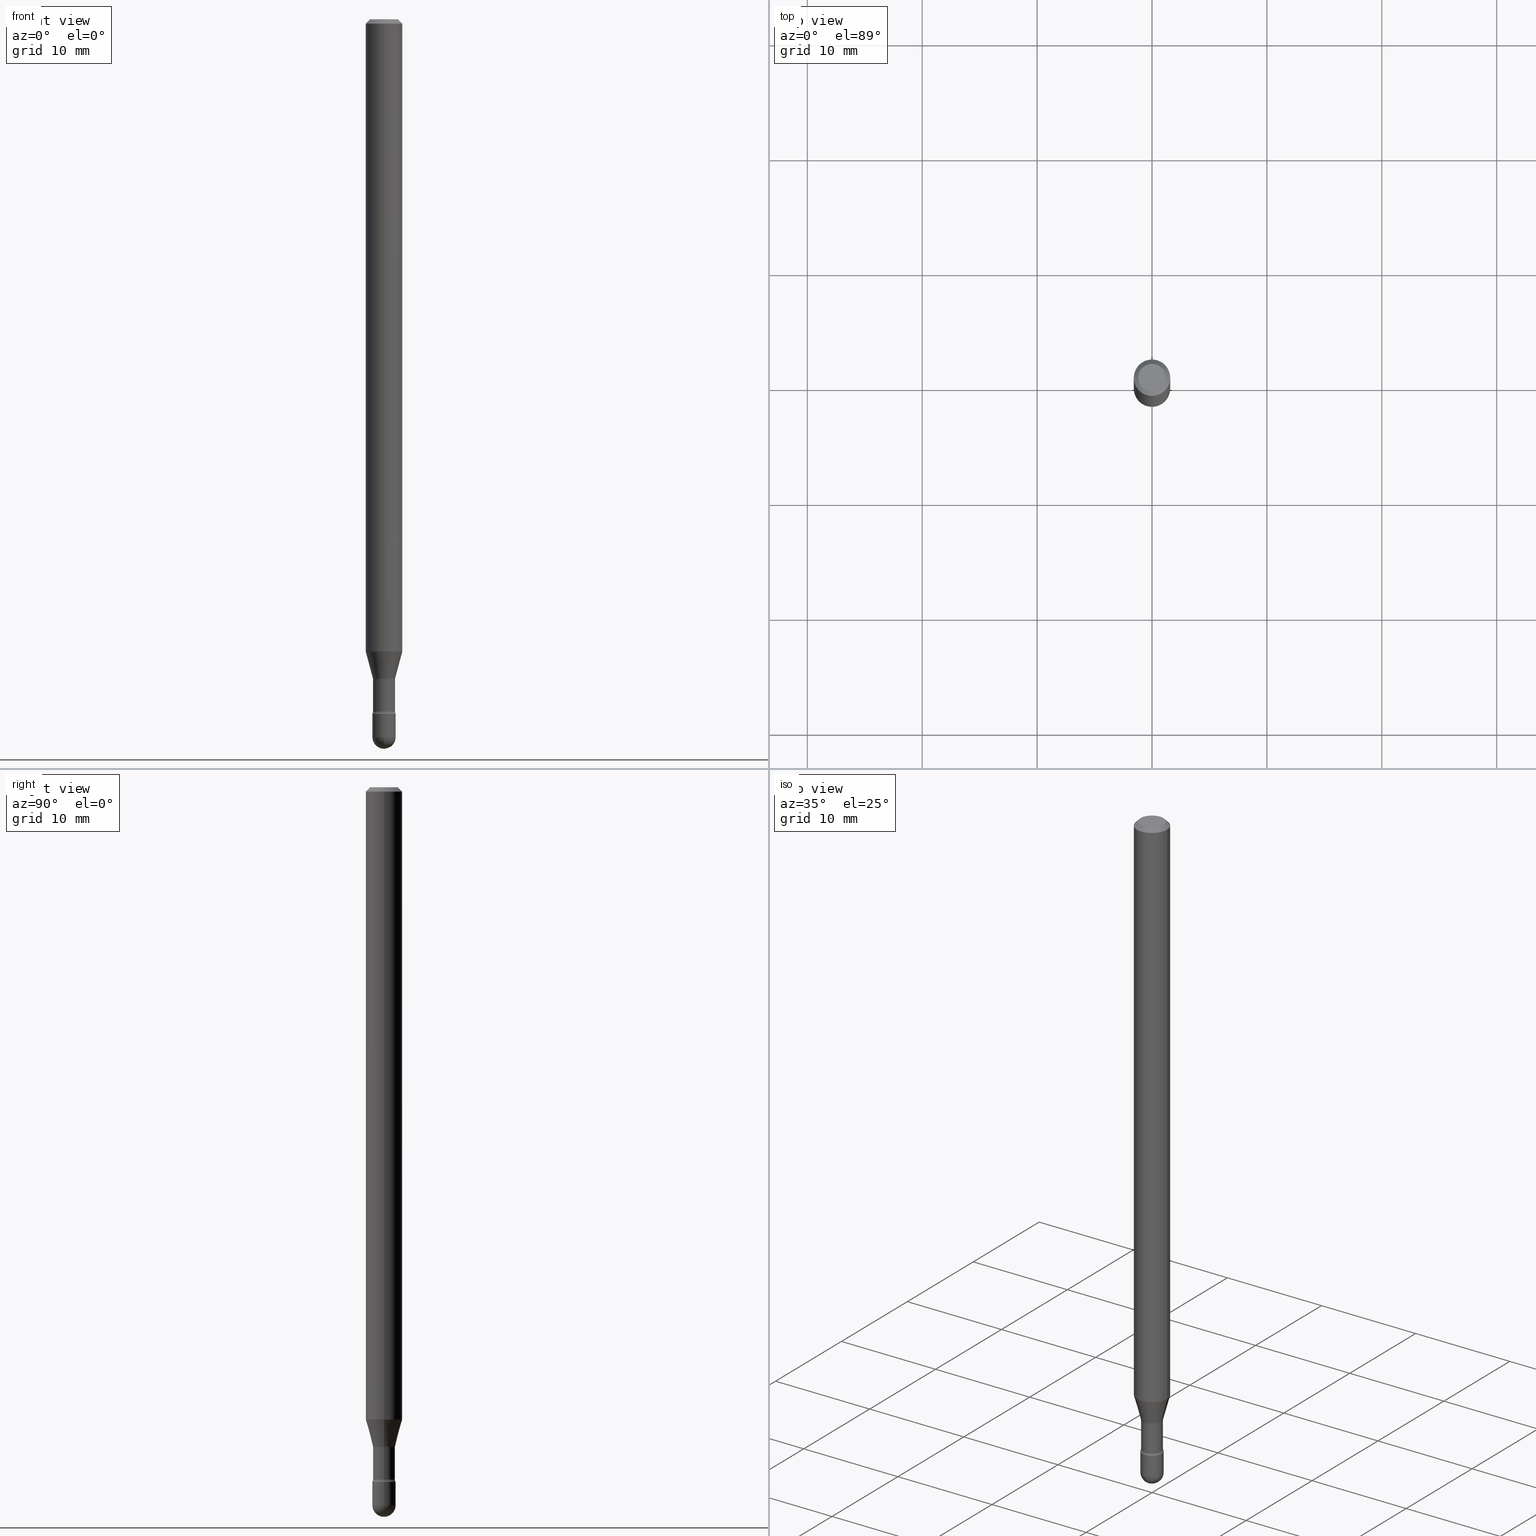
[diagram: canonical four-view strip — front | top / right | iso, engineering-drawing reading convention]
A machine part, canonical four-view strip (front | top / right | iso — engineering-drawing reading convention). The complete STEP part file that produces these views, byte-faithful:
ISO-10303-21;
HEADER;
FILE_DESCRIPTION (( 'STEP AP203' ),
    '1' );
FILE_NAME ('09536.STEP',
    '2024-04-10T00:24:25',
    ( '' ),
    ( '' ),
    'SwSTEP 2.0',
    'SolidWorks 2023',
    '' );
FILE_SCHEMA (( 'CONFIG_CONTROL_DESIGN' ));
ENDSEC;

DATA;
#1 = SHAPE_DEFINITION_REPRESENTATION ( #358, #173 ) ;
#2 = LINE ( 'NONE', #170, #9 ) ;
#3 = TOROIDAL_SURFACE ( 'NONE', #110, 0.05260000000000002174, 0.01499999999999990404 ) ;
#4 = EDGE_CURVE ( 'NONE', #364, #277, #104, .T. ) ;
#5 = LINE ( 'NONE', #445, #185 ) ;
#6 = ORIENTED_EDGE ( 'NONE', *, *, #168, .F. ) ;
#7 = APPROVAL ( #564, 'UNSPECIFIED' ) ;
#8 = CARTESIAN_POINT ( 'NONE',  ( 6.115382348041200269E-29, -8.726254053509568220E-15, -2.500000000000000000 ) ) ;
#9 = VECTOR ( 'NONE', #350, 39.37007874015748143 ) ;
#10 = EDGE_LOOP ( 'NONE', ( #157, #461 ) ) ;
#11 = ORIENTED_EDGE ( 'NONE', *, *, #501, .T. ) ;
#12 = CLOSED_SHELL ( 'NONE', ( #181, #558, #196, #136, #241, #319, #327, #269, #337, #566, #529, #221, #441, #460 ) ) ;
#13 = DIRECTION ( 'NONE',  ( -1.000000000000000000, 7.105427357601001070E-15, -4.926315508542082329E-29 ) ) ;
#14 = APPLICATION_CONTEXT ( 'configuration controlled 3d designs of mechanical parts and assemblies' ) ;
#15 = EDGE_LOOP ( 'NONE', ( #231, #284, #507, #71, #422 ) ) ;
#16 = EDGE_CURVE ( 'NONE', #122, #186, #443, .T. ) ;
#17 = DIRECTION ( 'NONE',  ( -6.982962677686266711E-15, -1.000000000000000000, 3.491481338843145583E-15 ) ) ;
#18 = CYLINDRICAL_SURFACE ( 'NONE', #339, 0.06250000000000000000 ) ;
#19 = DIRECTION ( 'NONE',  ( -7.105427357601000281E-15, -1.000000000000000000, 0.000000000000000000 ) ) ;
#20 = AXIS2_PLACEMENT_3D ( 'NONE', #286, #199, #506 ) ;
#21 = ORIENTED_EDGE ( 'NONE', *, *, #127, .F. ) ;
#22 = AXIS2_PLACEMENT_3D ( 'NONE', #155, #198, #23 ) ;
#23 = DIRECTION ( 'NONE',  ( -1.000000000000000000, 6.982962677686265922E-15, -4.876176775795935793E-29 ) ) ;
#24 = CARTESIAN_POINT ( 'NONE',  ( -1.169113584055446105E-44, 1.669184350826100908E-30, 4.780733988912460139E-16 ) ) ;
#25 = ORIENTED_EDGE ( 'NONE', *, *, #101, .T. ) ;
#26 = EDGE_CURVE ( 'NONE', #465, #504, #544, .T. ) ;
#27 = DIRECTION ( 'NONE',  ( -2.445468806185136597E-29, 3.491481338843145583E-15, 1.000000000000000000 ) ) ;
#28 = FACE_OUTER_BOUND ( 'NONE', #500, .T. ) ;
#29 = ORIENTED_EDGE ( 'NONE', *, *, #168, .T. ) ;
#30 = DIRECTION ( 'NONE',  ( 0.000000000000000000, 0.000000000000000000, 1.000000000000000000 ) ) ;
#31 = ORIENTED_EDGE ( 'NONE', *, *, #484, .F. ) ;
#32 = CIRCLE ( 'NONE', #70, 0.01500000000000001853 ) ;
#33 = SECURITY_CLASSIFICATION ( '', '', #212 ) ;
#34 = PERSON_AND_ORGANIZATION ( #513, #273 ) ;
#35 = CARTESIAN_POINT ( 'NONE',  ( 5.820215758720626311E-29, -8.309725586446688309E-15, -2.380000000000000338 ) ) ;
#36 = PERSON_AND_ORGANIZATION_ROLE ( 'creator' ) ;
#37 = DIRECTION ( 'NONE',  ( -2.438088387897960049E-29, 3.491481338843145188E-15, 1.000000000000000000 ) ) ;
#38 = EDGE_CURVE ( 'NONE', #232, #364, #415, .T. ) ;
#39 = DATE_AND_TIME ( #427, #349 ) ;
#40 = DIRECTION ( 'NONE',  ( 6.982962677686265922E-15, 1.000000000000000000, -6.829619984160649566E-15 ) ) ;
#41 = EDGE_CURVE ( 'NONE', #122, #361, #499, .T. ) ;
#42 = TOROIDAL_SURFACE ( 'NONE', #532, 0.05260000000000000092, 0.01500000000000002373 ) ;
#43 = FACE_OUTER_BOUND ( 'NONE', #79, .T. ) ;
#44 = VECTOR ( 'NONE', #184, 39.37007874015748143 ) ;
#45 = CYLINDRICAL_SURFACE ( 'NONE', #134, 0.04000000000000000083 ) ;
#46 = DATE_TIME_ROLE ( 'creation_date' ) ;
#47 = FACE_OUTER_BOUND ( 'NONE', #406, .T. ) ;
#48 = CONICAL_SURFACE ( 'NONE', #330, 0.06250000000000000000, 0.7853981633974483900 ) ;
#49 = EDGE_CURVE ( 'NONE', #277, #364, #488, .T. ) ;
#50 = ORIENTED_EDGE ( 'NONE', *, *, #370, .T. ) ;
#51 = DIRECTION ( 'NONE',  ( -2.445468806185136597E-29, 3.491481338843145583E-15, 1.000000000000000000 ) ) ;
#52 = DIRECTION ( 'NONE',  ( -2.445468806185136597E-29, 3.491481338843145583E-15, 1.000000000000000000 ) ) ;
#53 = VERTEX_POINT ( 'NONE', #547 ) ;
#54 = ORIENTED_EDGE ( 'NONE', *, *, #139, .F. ) ;
#55 = EDGE_LOOP ( 'NONE', ( #359, #360, #531, #54 ) ) ;
#56 = DIRECTION ( 'NONE',  ( 1.000000000000000000, -6.982962677686259611E-15, 0.000000000000000000 ) ) ;
#57 = AXIS2_PLACEMENT_3D ( 'NONE', #431, #37, #263 ) ;
#58 = ORIENTED_EDGE ( 'NONE', *, *, #424, .T. ) ;
#59 = AXIS2_PLACEMENT_3D ( 'NONE', #77, #202, #116 ) ;
#60 = AXIS2_PLACEMENT_3D ( 'NONE', #230, #276, #400 ) ;
#61 = SPHERICAL_SURFACE ( 'NONE', #561, 0.04000000000000004940 ) ;
#62 = VERTEX_POINT ( 'NONE', #275 ) ;
#63 =( NAMED_UNIT ( * ) PLANE_ANGLE_UNIT ( ) SI_UNIT ( $, .RADIAN. ) );
#64 = APPROVAL ( #322, 'UNSPECIFIED' ) ;
#65 = CARTESIAN_POINT ( 'NONE',  ( 2.793185071075109275E-16, 0.03999999999999143130, -2.460000000000000409 ) ) ;
#66 = ORIENTED_EDGE ( 'NONE', *, *, #91, .F. ) ;
#67 = ORIENTED_EDGE ( 'NONE', *, *, #26, .T. ) ;
#68 = CARTESIAN_POINT ( 'NONE',  ( -0.06250000000000000000, 4.440892098500642925E-16, 4.780733988912429571E-16 ) ) ;
#69 = EDGE_CURVE ( 'NONE', #326, #146, #355, .T. ) ;
#70 = AXIS2_PLACEMENT_3D ( 'NONE', #478, #393, #175 ) ;
#71 = ORIENTED_EDGE ( 'NONE', *, *, #370, .F. ) ;
#72 = AXIS2_PLACEMENT_3D ( 'NONE', #371, #27, #161 ) ;
#73 =( CONVERSION_BASED_UNIT ( 'INCH', #329 ) LENGTH_UNIT ( ) NAMED_UNIT ( #268 ) );
#74 = CARTESIAN_POINT ( 'NONE',  ( 3.668203209277725232E-31, -5.237222008264747365E-17, -0.01500000000000008271 ) ) ;
#75 = CC_DESIGN_PERSON_AND_ORGANIZATION_ASSIGNMENT ( #174, #438, ( #351 ) ) ;
#76 = ORIENTED_EDGE ( 'NONE', *, *, #16, .F. ) ;
#77 = CARTESIAN_POINT ( 'NONE',  ( 0.05260000000000002174, -8.648612969009036274E-15, -2.371861204020250469 ) ) ;
#78 = DIRECTION ( 'NONE',  ( -2.445468806185136877E-29, 3.491481338843145188E-15, 1.000000000000000000 ) ) ;
#79 = EDGE_LOOP ( 'NONE', ( #464, #398, #160, #189 ) ) ;
#80 = CARTESIAN_POINT ( 'NONE',  ( -1.169113584055446105E-44, 1.669184350826100908E-30, 4.780733988912460139E-16 ) ) ;
#81 = DIRECTION ( 'NONE',  ( 1.000000000000000000, -6.982962677686256455E-15, 4.883557194083108977E-29 ) ) ;
#82 = CIRCLE ( 'NONE', #176, 0.03811111260566397985 ) ;
#83 = PERSON_AND_ORGANIZATION ( #513, #273 ) ;
#84 = EDGE_CURVE ( 'NONE', #115, #106, #283, .T. ) ;
#85 = CARTESIAN_POINT ( 'NONE',  ( -0.06250000000000000000, -3.365242510493513525E-15, -0.01500000000000008271 ) ) ;
#86 = PRODUCT ( '09536', '09536', '', ( #413 ) ) ;
#87 = APPROVAL_ROLE ( '' ) ;
#88 = CARTESIAN_POINT ( 'NONE',  ( -0.03999999999999993144, -8.025508492142647982E-15, -2.380000000000000338 ) ) ;
#89 = CARTESIAN_POINT ( 'NONE',  ( -0.04000000000000000083, -8.165167745696373001E-15, -2.380000000000000338 ) ) ;
#90 = CARTESIAN_POINT ( 'NONE',  ( 5.531588783120004822E-29, -7.897642759363587821E-15, -2.261974787463811420 ) ) ;
#91 = EDGE_CURVE ( 'NONE', #53, #125, #5, .T. ) ;
#92 = CIRCLE ( 'NONE', #100, 0.04000000000000004940 ) ;
#93 = APPROVAL_STATUS ( 'not_yet_approved' ) ;
#94 = LOCAL_TIME ( 20, 24, 25.00000000000000000, #378 ) ;
#95 = DIRECTION ( 'NONE',  ( 2.445468806185136597E-29, -3.491481338843145583E-15, -1.000000000000000000 ) ) ;
#96 = PERSON_AND_ORGANIZATION_ROLE ( 'design_supplier' ) ;
#97 = DIRECTION ( 'NONE',  ( -1.000000000000000000, 6.982962677686265922E-15, -4.883557194083112340E-29 ) ) ;
#98 = CARTESIAN_POINT ( 'NONE',  ( 6.015853263215436432E-29, -8.589044093554138346E-15, -2.459999999999999964 ) ) ;
#99 = FACE_OUTER_BOUND ( 'NONE', #320, .T. ) ;
#100 = AXIS2_PLACEMENT_3D ( 'NONE', #336, #503, #416 ) ;
#101 = EDGE_CURVE ( 'NONE', #295, #106, #480, .T. ) ;
#102 = APPROVAL_PERSON_ORGANIZATION ( #169, #226, #87 ) ;
#103 = DIRECTION ( 'NONE',  ( 1.000000000000000000, -6.982962677686262766E-15, 0.000000000000000000 ) ) ;
#104 = CIRCLE ( 'NONE', #471, 0.04000000000000000083 ) ;
#105 = ORIENTED_EDGE ( 'NONE', *, *, #519, .T. ) ;
#106 = VERTEX_POINT ( 'NONE', #353 ) ;
#107 = CARTESIAN_POINT ( 'NONE',  ( -1.169113584055446105E-44, 1.669184350826100908E-30, 4.780733988912460139E-16 ) ) ;
#108 = DIRECTION ( 'NONE',  ( 1.000000000000000000, -6.982962677686259611E-15, 0.000000000000000000 ) ) ;
#109 = DIRECTION ( 'NONE',  ( -1.000000000000000000, 6.982962677686265922E-15, -4.883557194083112340E-29 ) ) ;
#110 = AXIS2_PLACEMENT_3D ( 'NONE', #193, #518, #549 ) ;
#111 = VERTEX_POINT ( 'NONE', #301 ) ;
#112 = CC_DESIGN_APPROVAL ( #226, ( #33 ) ) ;
#113 = DIRECTION ( 'NONE',  ( 1.000000000000000000, -6.982962677686265922E-15, 4.876176775795935793E-29 ) ) ;
#114 = DIRECTION ( 'NONE',  ( 1.000000000000000000, -6.982962677686259611E-15, 0.000000000000000000 ) ) ;
#115 = VERTEX_POINT ( 'NONE', #372 ) ;
#116 = DIRECTION ( 'NONE',  ( 1.000000000000000000, -6.982962677686246200E-15, 0.000000000000000000 ) ) ;
#117 = EDGE_CURVE ( 'NONE', #295, #242, #381, .T. ) ;
#118 = DIRECTION ( 'NONE',  ( 2.445468806185136597E-29, -3.491481338843145583E-15, -1.000000000000000000 ) ) ;
#119 = ORIENTED_EDGE ( 'NONE', *, *, #335, .F. ) ;
#120 = DIRECTION ( 'NONE',  ( -2.445468806185136597E-29, 3.491481338843145583E-15, 1.000000000000000000 ) ) ;
#121 = AXIS2_PLACEMENT_3D ( 'NONE', #304, #439, #300 ) ;
#122 = VERTEX_POINT ( 'NONE', #382 ) ;
#123 = FACE_OUTER_BOUND ( 'NONE', #383, .T. ) ;
#124 = CARTESIAN_POINT ( 'NONE',  ( -0.04749999999999999362, 3.578768372314208041E-16, -8.274703207154778150E-17 ) ) ;
#125 = VERTEX_POINT ( 'NONE', #89 ) ;
#126 = CARTESIAN_POINT ( 'NONE',  ( 5.299506817536516568E-29, -7.566291220604504020E-15, -2.167071934891535712 ) ) ;
#127 = EDGE_CURVE ( 'NONE', #146, #292, #459, .T. ) ;
#128 = DIRECTION ( 'NONE',  ( -2.445468806185136597E-29, 3.491481338843145583E-15, 1.000000000000000000 ) ) ;
#129 = VECTOR ( 'NONE', #225, 39.37007874015748143 ) ;
#130 = DATE_AND_TIME ( #517, #524 ) ;
#131 = AXIS2_PLACEMENT_3D ( 'NONE', #410, #13, #19 ) ;
#132 = FACE_OUTER_BOUND ( 'NONE', #55, .T. ) ;
#133 = DIRECTION ( 'NONE',  ( 1.000000000000000000, -6.982962677686263555E-15, 0.000000000000000000 ) ) ;
#134 = AXIS2_PLACEMENT_3D ( 'NONE', #562, #172, #428 ) ;
#135 = AXIS2_PLACEMENT_3D ( 'NONE', #540, #188, #194 ) ;
#136 = ADVANCED_FACE ( 'NONE', ( #255 ), #48, .T. ) ;
#137 = CARTESIAN_POINT ( 'NONE',  ( 0.04000000000000000083, -2.793185071074506290E-16, 1.950470710318374387E-30 ) ) ;
#138 = ORIENTED_EDGE ( 'NONE', *, *, #403, .F. ) ;
#139 = EDGE_CURVE ( 'NONE', #295, #326, #555, .T. ) ;
#140 = DIRECTION ( 'NONE',  ( 1.000000000000000000, -6.982962677686267499E-15, 4.839830652673561674E-29 ) ) ;
#141 = ORIENTED_EDGE ( 'NONE', *, *, #403, .T. ) ;
#142 = CIRCLE ( 'NONE', #216, 0.06250000000000000000 ) ;
#143 = ORIENTED_EDGE ( 'NONE', *, *, #84, .F. ) ;
#144 = EDGE_CURVE ( 'NONE', #125, #111, #394, .T. ) ;
#145 = ORIENTED_EDGE ( 'NONE', *, *, #178, .T. ) ;
#146 = VERTEX_POINT ( 'NONE', #367 ) ;
#147 = ORIENTED_EDGE ( 'NONE', *, *, #473, .T. ) ;
#148 = DIRECTION ( 'NONE',  ( -2.445468806185136597E-29, 3.491481338843145583E-15, 1.000000000000000000 ) ) ;
#149 = CIRCLE ( 'NONE', #321, 0.04749999999999999362 ) ;
#150 = ORIENTED_EDGE ( 'NONE', *, *, #214, .T. ) ;
#151 = ORIENTED_EDGE ( 'NONE', *, *, #4, .T. ) ;
#152 = PLANE ( 'NONE',  #22 ) ;
#153 = DIRECTION ( 'NONE',  ( -2.445468806185136597E-29, 3.491481338843145583E-15, 1.000000000000000000 ) ) ;
#154 = ORIENTED_EDGE ( 'NONE', *, *, #247, .T. ) ;
#155 = CARTESIAN_POINT ( 'NONE',  ( 3.316907271900976096E-16, 0.04749999999999999362, 3.181781981480094004E-17 ) ) ;
#156 = DIRECTION ( 'NONE',  ( -2.445468806185136597E-29, 3.491481338843145583E-15, 1.000000000000000000 ) ) ;
#157 = ORIENTED_EDGE ( 'NONE', *, *, #466, .T. ) ;
#158 = CARTESIAN_POINT ( 'NONE',  ( -0.03760000000000006393, 2.671640686457998004E-16, 4.780733988912442390E-16 ) ) ;
#159 = AXIS2_PLACEMENT_3D ( 'NONE', #559, #218, #565 ) ;
#160 = ORIENTED_EDGE ( 'NONE', *, *, #139, .T. ) ;
#161 = DIRECTION ( 'NONE',  ( 1.000000000000000000, -6.982962677686260400E-15, 0.000000000000000000 ) ) ;
#162 = CARTESIAN_POINT ( 'NONE',  ( 5.531588783120004822E-29, -7.897642759363587821E-15, -2.261974787463811420 ) ) ;
#163 = DIRECTION ( 'NONE',  ( 1.000000000000000000, -6.982962677686266711E-15, 4.852736867747366207E-29 ) ) ;
#164 = PERSON_AND_ORGANIZATION_ROLE ( 'classification_officer' ) ;
#165 = CARTESIAN_POINT ( 'NONE',  ( 3.668203209277725232E-31, -5.237222008264747365E-17, -0.01500000000000008271 ) ) ;
#166 = TOROIDAL_SURFACE ( 'NONE', #234, 0.05260000000000002174, 0.01499999999999990404 ) ;
#167 = CC_DESIGN_SECURITY_CLASSIFICATION ( #33, ( #414 ) ) ;
#168 = EDGE_CURVE ( 'NONE', #186, #122, #149, .T. ) ;
#169 = PERSON_AND_ORGANIZATION ( #513, #273 ) ;
#170 = CARTESIAN_POINT ( 'NONE',  ( -0.03811111260566397985, -7.613292089234999694E-15, -2.258092501787273498 ) ) ;
#171 = COORDINATED_UNIVERSAL_TIME_OFFSET ( 5, 0, .BEHIND. ) ;
#172 = DIRECTION ( 'NONE',  ( -2.445468806185136597E-29, 3.491481338843145583E-15, 1.000000000000000000 ) ) ;
#173 = ADVANCED_BREP_SHAPE_REPRESENTATION ( '09536', ( #477, #469, #307 ), #208 ) ;
#174 = PERSON_AND_ORGANIZATION ( #513, #273 ) ;
#175 = DIRECTION ( 'NONE',  ( -1.000000000000000000, 7.105427357600982137E-15, 0.000000000000000000 ) ) ;
#176 = AXIS2_PLACEMENT_3D ( 'NONE', #259, #525, #215 ) ;
#177 = DIRECTION ( 'NONE',  ( -2.445468806185136877E-29, 3.491481338843145188E-15, 1.000000000000000000 ) ) ;
#178 = EDGE_CURVE ( 'NONE', #292, #361, #142, .T. ) ;
#179 = DIRECTION ( 'NONE',  ( -2.445468806185136877E-29, 3.491481338843145188E-15, 1.000000000000000000 ) ) ;
#180 = AXIS2_PLACEMENT_3D ( 'NONE', #107, #494, #140 ) ;
#181 = ADVANCED_FACE ( 'NONE', ( #244 ), #42, .F. ) ;
#182 = DIRECTION ( 'NONE',  ( -2.445468806185136597E-29, 3.491481338843145583E-15, 1.000000000000000000 ) ) ;
#183 = AXIS2_PLACEMENT_3D ( 'NONE', #90, #521, #347 ) ;
#184 = DIRECTION ( 'NONE',  ( 0.7071067811865475727, -7.319954787623256045E-15, -0.7071067811865474617 ) ) ;
#185 = VECTOR ( 'NONE', #179, 39.37007874015748143 ) ;
#186 = VERTEX_POINT ( 'NONE', #124 ) ;
#187 = CC_DESIGN_PERSON_AND_ORGANIZATION_ASSIGNMENT ( #341, #96, ( #414 ) ) ;
#188 = DIRECTION ( 'NONE',  ( 7.105427357601001859E-15, 1.000000000000000000, -3.491481338843145583E-15 ) ) ;
#189 = ORIENTED_EDGE ( 'NONE', *, *, #214, .F. ) ;
#190 = DIRECTION ( 'NONE',  ( -2.445468806185136597E-29, 3.491481338843145583E-15, 1.000000000000000000 ) ) ;
#191 = ORIENTED_EDGE ( 'NONE', *, *, #260, .F. ) ;
#192 = AXIS2_PLACEMENT_3D ( 'NONE', #444, #317, #530 ) ;
#193 = CARTESIAN_POINT ( 'NONE',  ( 5.800312587032242765E-29, -8.281309132162739301E-15, -2.371861204020250469 ) ) ;
#194 = DIRECTION ( 'NONE',  ( -1.000000000000000000, 7.105427357600969515E-15, 0.000000000000000000 ) ) ;
#195 = AXIS2_PLACEMENT_3D ( 'NONE', #404, #190, #362 ) ;
#196 = ADVANCED_FACE ( 'NONE', ( #418 ), #166, .F. ) ;
#197 = ORIENTED_EDGE ( 'NONE', *, *, #271, .F. ) ;
#198 = DIRECTION ( 'NONE',  ( 2.438088387897960049E-29, -3.491481338843145188E-15, -1.000000000000000000 ) ) ;
#199 = DIRECTION ( 'NONE',  ( -2.445468806185136597E-29, 3.491481338843145583E-15, 1.000000000000000000 ) ) ;
#200 = DIRECTION ( 'NONE',  ( -2.445468806185136597E-29, 3.491481338843145583E-15, 1.000000000000000000 ) ) ;
#201 = ORIENTED_EDGE ( 'NONE', *, *, #247, .F. ) ;
#202 = DIRECTION ( 'NONE',  ( -6.982962677686266711E-15, -1.000000000000000000, 3.491481338843145583E-15 ) ) ;
#203 = DIRECTION ( 'NONE',  ( 1.000000000000000000, -6.982962677686266711E-15, 4.852736867747366207E-29 ) ) ;
#204 = VERTEX_POINT ( 'NONE', #65 ) ;
#205 = PERSON_AND_ORGANIZATION_ROLE ( 'design_owner' ) ;
#206 = CARTESIAN_POINT ( 'NONE',  ( 3.668203209277725232E-31, -5.237222008264747365E-17, -0.01500000000000008271 ) ) ;
#207 = AXIS2_PLACEMENT_3D ( 'NONE', #557, #128, #163 ) ;
#208 =( GEOMETRIC_REPRESENTATION_CONTEXT ( 3 ) GLOBAL_UNCERTAINTY_ASSIGNED_CONTEXT ( ( #345 ) ) GLOBAL_UNIT_ASSIGNED_CONTEXT ( ( #73, #63, #510 ) ) REPRESENTATION_CONTEXT ( 'NONE', 'WORKASPACE' ) );
#209 = ORIENTED_EDGE ( 'NONE', *, *, #38, .F. ) ;
#210 = VECTOR ( 'NONE', #78, 39.37007874015748143 ) ;
#211 = CARTESIAN_POINT ( 'NONE',  ( -0.03760000000000011944, -8.019826777829792953E-15, -2.371861204020250469 ) ) ;
#212 = SECURITY_CLASSIFICATION_LEVEL ( 'unclassified' ) ;
#213 = DIRECTION ( 'NONE',  ( -2.445468806185136597E-29, 3.491481338843145583E-15, 1.000000000000000000 ) ) ;
#214 = EDGE_CURVE ( 'NONE', #146, #326, #305, .T. ) ;
#215 = DIRECTION ( 'NONE',  ( 1.000000000000000000, -6.982962677686261977E-15, 0.000000000000000000 ) ) ;
#216 = AXIS2_PLACEMENT_3D ( 'NONE', #206, #373, #552 ) ;
#217 = APPROVAL_ROLE ( '' ) ;
#218 = DIRECTION ( 'NONE',  ( -2.445468806185136597E-29, 3.491481338843145583E-15, 1.000000000000000000 ) ) ;
#219 = DIRECTION ( 'NONE',  ( -2.445468806185136597E-29, 3.491481338843145583E-15, 1.000000000000000000 ) ) ;
#220 = CARTESIAN_POINT ( 'NONE',  ( 0.03811111260566397985, -8.150216308302346885E-15, -2.258092501787273498 ) ) ;
#221 = ADVANCED_FACE ( 'NONE', ( #468 ), #3, .F. ) ;
#222 = DIRECTION ( 'NONE',  ( 1.000000000000000000, -6.982962677686261977E-15, 0.000000000000000000 ) ) ;
#223 = CIRCLE ( 'NONE', #280, 0.03760000000000011944 ) ;
#224 = APPROVAL_DATE_TIME ( #39, #226 ) ;
#225 = DIRECTION ( 'NONE',  ( -2.445468806185136877E-29, 3.491481338843145188E-15, 1.000000000000000000 ) ) ;
#226 = APPROVAL ( #93, 'UNSPECIFIED' ) ;
#227 = ORIENTED_EDGE ( 'NONE', *, *, #473, .F. ) ;
#228 = DIRECTION ( 'NONE',  ( -0.7071067811865475727, 2.468850131082257455E-15, -0.7071067811865474617 ) ) ;
#229 = DESIGN_CONTEXT ( 'detailed design', #14, 'design' ) ;
#230 = CARTESIAN_POINT ( 'NONE',  ( 2.023552857353652888E-45, -2.889097183224559242E-31, -8.274703207154537794E-17 ) ) ;
#231 = ORIENTED_EDGE ( 'NONE', *, *, #542, .T. ) ;
#232 = VERTEX_POINT ( 'NONE', #211 ) ;
#233 = ORIENTED_EDGE ( 'NONE', *, *, #484, .T. ) ;
#234 = AXIS2_PLACEMENT_3D ( 'NONE', #334, #425, #81 ) ;
#235 = FACE_OUTER_BOUND ( 'NONE', #323, .T. ) ;
#236 = CARTESIAN_POINT ( 'NONE',  ( 5.820215758720626311E-29, -8.309725586446688309E-15, -2.380000000000000338 ) ) ;
#237 = DIRECTION ( 'NONE',  ( 6.982962677686265922E-15, 1.000000000000000000, -6.829619984160649566E-15 ) ) ;
#238 = DIRECTION ( 'NONE',  ( -2.445468806185136597E-29, 3.491481338843145583E-15, 1.000000000000000000 ) ) ;
#239 = FACE_OUTER_BOUND ( 'NONE', #543, .T. ) ;
#240 = DIRECTION ( 'NONE',  ( -2.445468806185136597E-29, 3.491481338843145583E-15, 1.000000000000000000 ) ) ;
#241 = ADVANCED_FACE ( 'NONE', ( #28 ), #385, .T. ) ;
#242 = VERTEX_POINT ( 'NONE', #297 ) ;
#243 = ORIENTED_EDGE ( 'NONE', *, *, #542, .F. ) ;
#244 = FACE_OUTER_BOUND ( 'NONE', #458, .T. ) ;
#245 = CC_DESIGN_DATE_AND_TIME_ASSIGNMENT ( #130, #46, ( #351 ) ) ;
#246 = AXIS2_PLACEMENT_3D ( 'NONE', #492, #238, #108 ) ;
#247 = EDGE_CURVE ( 'NONE', #53, #504, #288, .T. ) ;
#248 = EDGE_LOOP ( 'NONE', ( #76, #324, #11, #31 ) ) ;
#249 = APPLICATION_PROTOCOL_DEFINITION ( 'international standard', 'config_control_design', 1994, #14 ) ;
#250 = DIRECTION ( 'NONE',  ( 1.000000000000000000, -6.982962677686267499E-15, 4.884662768193073002E-29 ) ) ;
#251 = ORIENTED_EDGE ( 'NONE', *, *, #489, .T. ) ;
#252 = APPROVAL_ROLE ( '' ) ;
#253 = EDGE_LOOP ( 'NONE', ( #316, #446, #25, #251 ) ) ;
#254 = PLANE ( 'NONE',  #340 ) ;
#255 = FACE_OUTER_BOUND ( 'NONE', #248, .T. ) ;
#256 = CIRCLE ( 'NONE', #298, 0.03999999999999999389 ) ;
#257 = CLOSED_SHELL ( 'NONE', ( #380, #497, #274, #386, #390 ) ) ;
#258 = APPROVAL_DATE_TIME ( #343, #7 ) ;
#259 = CARTESIAN_POINT ( 'NONE',  ( 5.522094774601332079E-29, -7.884087831371896446E-15, -2.258092501787273498 ) ) ;
#260 = EDGE_CURVE ( 'NONE', #465, #204, #92, .T. ) ;
#261 = COORDINATED_UNIVERSAL_TIME_OFFSET ( 5, 0, .BEHIND. ) ;
#262 = LINE ( 'NONE', #137, #433 ) ;
#263 = DIRECTION ( 'NONE',  ( 1.000000000000000000, -6.982962677686265922E-15, 4.876176775795935793E-29 ) ) ;
#264 = CIRCLE ( 'NONE', #401, 0.04000000000000000083 ) ;
#265 = AXIS2_PLACEMENT_3D ( 'NONE', #454, #449, #56 ) ;
#266 = APPROVAL_PERSON_ORGANIZATION ( #83, #7, #217 ) ;
#267 = CARTESIAN_POINT ( 'NONE',  ( 6.015853263215436432E-29, -8.589044093554138346E-15, -2.459999999999999964 ) ) ;
#268 = DIMENSIONAL_EXPONENTS ( 1.000000000000000000, 0.000000000000000000, 0.000000000000000000, 0.000000000000000000, 0.000000000000000000, 0.000000000000000000, 0.000000000000000000 ) ;
#269 = ADVANCED_FACE ( 'NONE', ( #512 ), #18, .T. ) ;
#270 = CARTESIAN_POINT ( 'NONE',  ( 0.000000000000000000, 0.000000000000000000, 0.000000000000000000 ) ) ;
#271 = EDGE_CURVE ( 'NONE', #232, #528, #463, .T. ) ;
#272 = CONICAL_SURFACE ( 'NONE', #508, 0.06250000000000000000, 0.7853981633974483900 ) ;
#273 = ORGANIZATION ( 'UNSPECIFIED', 'UNSPECIFIED', '' ) ;
#274 = ADVANCED_FACE ( 'NONE', ( #437 ), #475, .T. ) ;
#275 = CARTESIAN_POINT ( 'NONE',  ( 0.03999999999999999389, -8.728703347107863365E-15, -2.459999999999999964 ) ) ;
#276 = DIRECTION ( 'NONE',  ( -2.445468806185136597E-29, 3.491481338843145583E-15, 1.000000000000000000 ) ) ;
#277 = VERTEX_POINT ( 'NONE', #388 ) ;
#278 = CARTESIAN_POINT ( 'NONE',  ( -0.06250000000000000000, 3.840629472727441958E-16, -0.01500000000000008271 ) ) ;
#279 = CARTESIAN_POINT ( 'NONE',  ( 5.299506817536516568E-29, -7.566291220604504020E-15, -2.167071934891535712 ) ) ;
#280 = AXIS2_PLACEMENT_3D ( 'NONE', #522, #219, #133 ) ;
#281 = CARTESIAN_POINT ( 'NONE',  ( 5.820215758720626311E-29, -8.309725586446688309E-15, -2.380000000000000338 ) ) ;
#282 = LOCAL_TIME ( 20, 24, 25.00000000000000000, #346 ) ;
#283 = LINE ( 'NONE', #311, #354 ) ;
#284 = ORIENTED_EDGE ( 'NONE', *, *, #91, .T. ) ;
#285 = ORIENTED_EDGE ( 'NONE', *, *, #101, .F. ) ;
#286 = CARTESIAN_POINT ( 'NONE',  ( 6.015853263215436432E-29, -8.589044093554138346E-15, -2.459999999999999964 ) ) ;
#287 = ORIENTED_EDGE ( 'NONE', *, *, #178, .F. ) ;
#288 = CIRCLE ( 'NONE', #20, 0.03999999999999999389 ) ;
#289 = DIRECTION ( 'NONE',  ( 1.000000000000000000, -6.982962677686259611E-15, 0.000000000000000000 ) ) ;
#290 = APPROVAL_PERSON_ORGANIZATION ( #34, #64, #252 ) ;
#291 = EDGE_CURVE ( 'NONE', #242, #146, #2, .T. ) ;
#292 = VERTEX_POINT ( 'NONE', #85 ) ;
#293 = DIRECTION ( 'NONE',  ( 1.000000000000000000, 0.000000000000000000, 0.000000000000000000 ) ) ;
#294 = DIRECTION ( 'NONE',  ( 0.2588190451025216277, 1.565188264969619995E-15, 0.9659258262890679791 ) ) ;
#295 = VERTEX_POINT ( 'NONE', #220 ) ;
#296 = DIRECTION ( 'NONE',  ( -2.445468806185136597E-29, 3.491481338843145583E-15, 1.000000000000000000 ) ) ;
#297 = CARTESIAN_POINT ( 'NONE',  ( -0.03811111260566397985, -7.367747049994720549E-15, -2.258092501787273498 ) ) ;
#298 = AXIS2_PLACEMENT_3D ( 'NONE', #98, #182, #356 ) ;
#299 = DATE_TIME_ROLE ( 'classification_date' ) ;
#300 = DIRECTION ( 'NONE',  ( 1.000000000000000000, -6.982962677686261977E-15, 0.000000000000000000 ) ) ;
#301 = CARTESIAN_POINT ( 'NONE',  ( 0.04000000000000000083, -8.589044093554138346E-15, -2.380000000000000338 ) ) ;
#302 = DIRECTION ( 'NONE',  ( -2.445468806185136877E-29, 3.491481338843145188E-15, 1.000000000000000000 ) ) ;
#303 = PERSON_AND_ORGANIZATION ( #513, #273 ) ;
#304 = CARTESIAN_POINT ( 'NONE',  ( 5.522094774601332079E-29, -7.884087831371896446E-15, -2.258092501787273498 ) ) ;
#305 = CIRCLE ( 'NONE', #487, 0.06250000000000000000 ) ;
#306 = EDGE_CURVE ( 'NONE', #528, #106, #379, .T. ) ;
#307 = AXIS2_PLACEMENT_3D ( 'NONE', #462, #30, #293 ) ;
#308 = AXIS2_PLACEMENT_3D ( 'NONE', #455, #17, #114 ) ;
#309 = DIRECTION ( 'NONE',  ( -2.445468806185136597E-29, 3.491481338843145583E-15, 1.000000000000000000 ) ) ;
#310 = CC_DESIGN_PERSON_AND_ORGANIZATION_ASSIGNMENT ( #505, #205, ( #86 ) ) ;
#311 = CARTESIAN_POINT ( 'NONE',  ( 0.03760000000000006393, -2.625593966810024198E-16, 4.780733988912478875E-16 ) ) ;
#312 = TOROIDAL_SURFACE ( 'NONE', #192, 0.05260000000000000092, 0.01500000000000002373 ) ;
#313 = CIRCLE ( 'NONE', #265, 0.03760000000000000842 ) ;
#314 = ORIENTED_EDGE ( 'NONE', *, *, #489, .F. ) ;
#315 = ORIENTED_EDGE ( 'NONE', *, *, #481, .T. ) ;
#316 = ORIENTED_EDGE ( 'NONE', *, *, #424, .F. ) ;
#317 = DIRECTION ( 'NONE',  ( -2.445468806185136597E-29, 3.491481338843145583E-15, 1.000000000000000000 ) ) ;
#318 = ORIENTED_EDGE ( 'NONE', *, *, #560, .T. ) ;
#319 = ADVANCED_FACE ( 'NONE', ( #132 ), #423, .T. ) ;
#320 = EDGE_LOOP ( 'NONE', ( #197, #141, #535, #526 ) ) ;
#321 = AXIS2_PLACEMENT_3D ( 'NONE', #516, #156, #250 ) ;
#322 = APPROVAL_STATUS ( 'not_yet_approved' ) ;
#323 = EDGE_LOOP ( 'NONE', ( #191, #67, #201, #243 ) ) ;
#324 = ORIENTED_EDGE ( 'NONE', *, *, #41, .T. ) ;
#325 = DIRECTION ( 'NONE',  ( -2.438088387897960049E-29, 3.491481338843145188E-15, 1.000000000000000000 ) ) ;
#326 = VERTEX_POINT ( 'NONE', #472 ) ;
#327 = ADVANCED_FACE ( 'NONE', ( #43 ), #451, .T. ) ;
#328 = EDGE_LOOP ( 'NONE', ( #21, #150, #315, #287 ) ) ;
#329 = LENGTH_MEASURE_WITH_UNIT ( LENGTH_MEASURE( 0.02539999999999999897 ), #384 );
#330 = AXIS2_PLACEMENT_3D ( 'NONE', #74, #118, #409 ) ;
#331 = CC_DESIGN_APPROVAL ( #64, ( #351 ) ) ;
#332 = ORIENTED_EDGE ( 'NONE', *, *, #271, .T. ) ;
#333 = DATE_AND_TIME ( #554, #94 ) ;
#334 = CARTESIAN_POINT ( 'NONE',  ( 5.800312587032242765E-29, -8.281309132162739301E-15, -2.371861204020250469 ) ) ;
#335 = EDGE_CURVE ( 'NONE', #242, #295, #82, .T. ) ;
#336 = CARTESIAN_POINT ( 'NONE',  ( 6.015853263215436432E-29, -8.589044093554138346E-15, -2.459999999999999964 ) ) ;
#337 = ADVANCED_FACE ( 'NONE', ( #392 ), #272, .T. ) ;
#338 = DIRECTION ( 'NONE',  ( -1.000000000000000000, 6.982962677686266711E-15, 0.000000000000000000 ) ) ;
#339 = AXIS2_PLACEMENT_3D ( 'NONE', #24, #120, #203 ) ;
#340 = AXIS2_PLACEMENT_3D ( 'NONE', #456, #325, #113 ) ;
#341 = PERSON_AND_ORGANIZATION ( #513, #273 ) ;
#342 = SPHERICAL_SURFACE ( 'NONE', #520, 0.04000000000000004940 ) ;
#343 = DATE_AND_TIME ( #482, #282 ) ;
#344 = DIRECTION ( 'NONE',  ( 1.000000000000000000, -6.982962677686265922E-15, 4.876176775795935793E-29 ) ) ;
#345 = UNCERTAINTY_MEASURE_WITH_UNIT (LENGTH_MEASURE( 1.000000000000000082E-05 ), #73, 'distance_accuracy_value', 'NONE');
#346 = COORDINATED_UNIVERSAL_TIME_OFFSET ( 5, 0, .BEHIND. ) ;
#347 = DIRECTION ( 'NONE',  ( 1.000000000000000000, -6.982962677686259611E-15, 0.000000000000000000 ) ) ;
#348 = VECTOR ( 'NONE', #302, 39.37007874015748143 ) ;
#349 = LOCAL_TIME ( 20, 24, 25.00000000000000000, #261 ) ;
#350 = DIRECTION ( 'NONE',  ( -0.2588190451025216277, 5.211531920934551831E-15, 0.9659258262890679791 ) ) ;
#351 = PRODUCT_DEFINITION ( 'UNKNOWN', '', #414, #229 ) ;
#352 = DIRECTION ( 'NONE',  ( 1.000000000000000000, -6.982962677686260400E-15, 0.000000000000000000 ) ) ;
#353 = CARTESIAN_POINT ( 'NONE',  ( 0.03760000000000000842, -8.160202156044591424E-15, -2.261974787463811420 ) ) ;
#354 = VECTOR ( 'NONE', #486, 39.37007874015748143 ) ;
#355 = CIRCLE ( 'NONE', #435, 0.06250000000000000000 ) ;
#356 = DIRECTION ( 'NONE',  ( 1.000000000000000000, -6.982962677686260400E-15, 0.000000000000000000 ) ) ;
#357 = EDGE_LOOP ( 'NONE', ( #138, #374, #151, #553 ) ) ;
#358 = PRODUCT_DEFINITION_SHAPE ( 'NONE', 'NONE',  #351 ) ;
#359 = ORIENTED_EDGE ( 'NONE', *, *, #117, .T. ) ;
#360 = ORIENTED_EDGE ( 'NONE', *, *, #291, .T. ) ;
#361 = VERTEX_POINT ( 'NONE', #563 ) ;
#362 = DIRECTION ( 'NONE',  ( 1.000000000000000000, -6.982962677686266711E-15, 0.000000000000000000 ) ) ;
#363 = ORIENTED_EDGE ( 'NONE', *, *, #16, .T. ) ;
#364 = VERTEX_POINT ( 'NONE', #88 ) ;
#365 = CARTESIAN_POINT ( 'NONE',  ( -0.03760000000000000842, -7.822311877117365339E-15, -2.261974787463811420 ) ) ;
#366 = CC_DESIGN_APPROVAL ( #7, ( #414 ) ) ;
#367 = CARTESIAN_POINT ( 'NONE',  ( -0.06250000000000000000, -7.122202010754441403E-15, -2.167071934891535712 ) ) ;
#368 = CARTESIAN_POINT ( 'NONE',  ( 0.06250000000000000000, -4.811533449433681963E-16, -0.01500000000000008271 ) ) ;
#369 = EDGE_LOOP ( 'NONE', ( #66, #154, #147, #50, #514 ) ) ;
#370 = EDGE_CURVE ( 'NONE', #62, #111, #262, .T. ) ;
#371 = CARTESIAN_POINT ( 'NONE',  ( 6.015853263215436432E-29, -8.589044093554138346E-15, -2.459999999999999964 ) ) ;
#372 = CARTESIAN_POINT ( 'NONE',  ( 0.03760000000000011944, -8.543868528843742905E-15, -2.371861204020250469 ) ) ;
#373 = DIRECTION ( 'NONE',  ( -2.445468806185136597E-29, 3.491481338843145583E-15, 1.000000000000000000 ) ) ;
#374 = ORIENTED_EDGE ( 'NONE', *, *, #38, .T. ) ;
#375 = FACE_OUTER_BOUND ( 'NONE', #536, .T. ) ;
#376 = DIRECTION ( 'NONE',  ( 1.000000000000000000, -6.982962677686262766E-15, 0.000000000000000000 ) ) ;
#377 = ORIENTED_EDGE ( 'NONE', *, *, #49, .F. ) ;
#378 = COORDINATED_UNIVERSAL_TIME_OFFSET ( 5, 0, .BEHIND. ) ;
#379 = CIRCLE ( 'NONE', #183, 0.03760000000000000842 ) ;
#380 = ADVANCED_FACE ( 'NONE', ( #470 ), #45, .T. ) ;
#381 = CIRCLE ( 'NONE', #453, 0.03811111260566397985 ) ;
#382 = CARTESIAN_POINT ( 'NONE',  ( 0.04749999999999999362, -4.035134999187581581E-16, -8.274703207154280181E-17 ) ) ;
#383 = EDGE_LOOP ( 'NONE', ( #29, #363 ) ) ;
#384 =( LENGTH_UNIT ( ) NAMED_UNIT ( * ) SI_UNIT ( $, .METRE. ) );
#385 = CYLINDRICAL_SURFACE ( 'NONE', #207, 0.06250000000000000000 ) ;
#386 = ADVANCED_FACE ( 'NONE', ( #47 ), #342, .T. ) ;
#387 = PERSON_AND_ORGANIZATION ( #513, #273 ) ;
#388 = CARTESIAN_POINT ( 'NONE',  ( 0.03999999999999993144, -8.589044093554136769E-15, -2.380000000000000338 ) ) ;
#389 = CIRCLE ( 'NONE', #533, 0.03760000000000011944 ) ;
#390 = ADVANCED_FACE ( 'NONE', ( #426 ), #483, .T. ) ;
#391 = DATE_AND_TIME ( #430, #434 ) ;
#392 = FACE_OUTER_BOUND ( 'NONE', #450, .T. ) ;
#393 = DIRECTION ( 'NONE',  ( 7.105427357601001859E-15, 1.000000000000000000, -3.491481338843145583E-15 ) ) ;
#394 = CIRCLE ( 'NONE', #432, 0.04000000000000000083 ) ;
#395 = CIRCLE ( 'NONE', #72, 0.03999999999999999389 ) ;
#396 = ORIENTED_EDGE ( 'NONE', *, *, #26, .F. ) ;
#397 = CYLINDRICAL_SURFACE ( 'NONE', #180, 0.03760000000000006393 ) ;
#398 = ORIENTED_EDGE ( 'NONE', *, *, #335, .T. ) ;
#399 = CC_DESIGN_DATE_AND_TIME_ASSIGNMENT ( #391, #299, ( #33 ) ) ;
#400 = DIRECTION ( 'NONE',  ( 1.000000000000000000, -6.982962677686267499E-15, 4.884662768193073002E-29 ) ) ;
#401 = AXIS2_PLACEMENT_3D ( 'NONE', #281, #51, #447 ) ;
#402 = ORIENTED_EDGE ( 'NONE', *, *, #260, .T. ) ;
#403 = EDGE_CURVE ( 'NONE', #232, #115, #223, .T. ) ;
#404 = CARTESIAN_POINT ( 'NONE',  ( 3.668203209277725232E-31, -5.237222008264747365E-17, -0.01500000000000008271 ) ) ;
#405 = APPLICATION_CONTEXT ( 'configuration controlled 3d designs of mechanical parts and assemblies' ) ;
#406 = EDGE_LOOP ( 'NONE', ( #396, #402, #490, #227 ) ) ;
#407 = ORIENTED_EDGE ( 'NONE', *, *, #49, .T. ) ;
#408 = CARTESIAN_POINT ( 'NONE',  ( 5.522094774601332079E-29, -7.884087831371896446E-15, -2.258092501787273498 ) ) ;
#409 = DIRECTION ( 'NONE',  ( -1.000000000000000000, 6.982962677686266711E-15, 0.000000000000000000 ) ) ;
#410 = CARTESIAN_POINT ( 'NONE',  ( 6.015853263215436432E-29, -8.589044093554138346E-15, -2.459999999999999964 ) ) ;
#411 = ORIENTED_EDGE ( 'NONE', *, *, #41, .F. ) ;
#412 = AXIS2_PLACEMENT_3D ( 'NONE', #270, #213, #344 ) ;
#413 = MECHANICAL_CONTEXT ( 'NONE', #405, 'mechanical' ) ;
#414 = PRODUCT_DEFINITION_FORMATION_WITH_SPECIFIED_SOURCE ( 'ANY', '', #86, .NOT_KNOWN. ) ;
#415 = CIRCLE ( 'NONE', #135, 0.01499999999999990750 ) ;
#416 = DIRECTION ( 'NONE',  ( 6.982962677686266711E-15, 1.000000000000000000, 0.000000000000000000 ) ) ;
#417 = ORIENTED_EDGE ( 'NONE', *, *, #501, .F. ) ;
#418 = FACE_OUTER_BOUND ( 'NONE', #357, .T. ) ;
#419 = EDGE_LOOP ( 'NONE', ( #209, #548, #318, #407 ) ) ;
#420 = DIRECTION ( 'NONE',  ( -2.445468806185136597E-29, 3.491481338843145583E-15, 1.000000000000000000 ) ) ;
#421 = DIRECTION ( 'NONE',  ( 1.000000000000000000, -6.982962677686261977E-15, 4.883557194083110659E-29 ) ) ;
#422 = ORIENTED_EDGE ( 'NONE', *, *, #429, .T. ) ;
#423 = CONICAL_SURFACE ( 'NONE', #121, 0.03811111260566397985, 0.2617993877991502960 ) ;
#424 = EDGE_CURVE ( 'NONE', #242, #528, #32, .T. ) ;
#425 = DIRECTION ( 'NONE',  ( -2.445468806185136597E-29, 3.491481338843145583E-15, 1.000000000000000000 ) ) ;
#426 = FACE_OUTER_BOUND ( 'NONE', #369, .T. ) ;
#427 = CALENDAR_DATE ( 2024, 9, 4 ) ;
#428 = DIRECTION ( 'NONE',  ( 1.000000000000000000, -6.982962677686265922E-15, 4.876176775795935793E-29 ) ) ;
#429 = EDGE_CURVE ( 'NONE', #62, #204, #496, .T. ) ;
#430 = CALENDAR_DATE ( 2024, 9, 4 ) ;
#431 = CARTESIAN_POINT ( 'NONE',  ( 5.820215758720626311E-29, -8.309725586446688309E-15, -2.380000000000000338 ) ) ;
#432 = AXIS2_PLACEMENT_3D ( 'NONE', #35, #240, #289 ) ;
#433 = VECTOR ( 'NONE', #177, 39.37007874015748143 ) ;
#434 = LOCAL_TIME ( 20, 24, 25.00000000000000000, #474 ) ;
#435 = AXIS2_PLACEMENT_3D ( 'NONE', #279, #538, #103 ) ;
#436 = CC_DESIGN_PERSON_AND_ORGANIZATION_ASSIGNMENT ( #303, #36, ( #414 ) ) ;
#437 = FACE_OUTER_BOUND ( 'NONE', #10, .T. ) ;
#438 = PERSON_AND_ORGANIZATION_ROLE ( 'creator' ) ;
#439 = DIRECTION ( 'NONE',  ( -2.445468806185136597E-29, 3.491481338843145583E-15, 1.000000000000000000 ) ) ;
#440 = CARTESIAN_POINT ( 'NONE',  ( -2.842170943039800282E-16, -0.04000000000000860506, -2.459999999999999520 ) ) ;
#441 = ADVANCED_FACE ( 'NONE', ( #99 ), #397, .T. ) ;
#442 = VECTOR ( 'NONE', #228, 39.37007874015748143 ) ;
#443 = CIRCLE ( 'NONE', #60, 0.04749999999999999362 ) ;
#444 = CARTESIAN_POINT ( 'NONE',  ( 5.531588783120004822E-29, -7.897642759363587821E-15, -2.261974787463811420 ) ) ;
#445 = CARTESIAN_POINT ( 'NONE',  ( -0.04000000000000000083, 2.842170943040400803E-16, -1.967574036101962509E-30 ) ) ;
#446 = ORIENTED_EDGE ( 'NONE', *, *, #117, .F. ) ;
#447 = DIRECTION ( 'NONE',  ( 1.000000000000000000, -6.982962677686259611E-15, 0.000000000000000000 ) ) ;
#448 = ORIENTED_EDGE ( 'NONE', *, *, #306, .T. ) ;
#449 = DIRECTION ( 'NONE',  ( -2.445468806185136597E-29, 3.491481338843145583E-15, 1.000000000000000000 ) ) ;
#450 = EDGE_LOOP ( 'NONE', ( #411, #6, #233, #145 ) ) ;
#451 = CONICAL_SURFACE ( 'NONE', #159, 0.03811111260566397985, 0.2617993877991502960 ) ;
#452 = AXIS2_PLACEMENT_3D ( 'NONE', #80, #420, #545 ) ;
#453 = AXIS2_PLACEMENT_3D ( 'NONE', #408, #200, #222 ) ;
#454 = CARTESIAN_POINT ( 'NONE',  ( 5.531588783120004822E-29, -7.897642759363587821E-15, -2.261974787463811420 ) ) ;
#455 = CARTESIAN_POINT ( 'NONE',  ( 0.05260000000000000092, -8.264946596209884794E-15, -2.261974787463811420 ) ) ;
#456 = CARTESIAN_POINT ( 'NONE',  ( 2.793185071075088075E-16, 0.03999999999999169498, -2.380000000000000782 ) ) ;
#457 = ORIENTED_EDGE ( 'NONE', *, *, #4, .F. ) ;
#458 = EDGE_LOOP ( 'NONE', ( #119, #58, #448, #285 ) ) ;
#459 = LINE ( 'NONE', #68, #210 ) ;
#460 = ADVANCED_FACE ( 'NONE', ( #491 ), #312, .F. ) ;
#461 = ORIENTED_EDGE ( 'NONE', *, *, #144, .T. ) ;
#462 = CARTESIAN_POINT ( 'NONE',  ( 0.000000000000000000, 0.000000000000000000, 0.000000000000000000 ) ) ;
#463 = LINE ( 'NONE', #158, #348 ) ;
#464 = ORIENTED_EDGE ( 'NONE', *, *, #291, .F. ) ;
#465 = VERTEX_POINT ( 'NONE', #8 ) ;
#466 = EDGE_CURVE ( 'NONE', #111, #125, #264, .T. ) ;
#467 = APPLICATION_PROTOCOL_DEFINITION ( 'international standard', 'config_control_design', 1994, #405 ) ;
#468 = FACE_OUTER_BOUND ( 'NONE', #419, .T. ) ;
#469 = MANIFOLD_SOLID_BREP ( 'Body-Move/Copy2[2]', #12 ) ;
#470 = FACE_OUTER_BOUND ( 'NONE', #15, .T. ) ;
#471 = AXIS2_PLACEMENT_3D ( 'NONE', #236, #52, #495 ) ;
#472 = CARTESIAN_POINT ( 'NONE',  ( 0.06250000000000000000, -8.002726387959895689E-15, -2.167071934891535712 ) ) ;
#473 = EDGE_CURVE ( 'NONE', #504, #62, #256, .T. ) ;
#474 = COORDINATED_UNIVERSAL_TIME_OFFSET ( 5, 0, .BEHIND. ) ;
#475 = PLANE ( 'NONE',  #57 ) ;
#476 = PRODUCT_RELATED_PRODUCT_CATEGORY ( 'detail', '', ( #86 ) ) ;
#477 = MANIFOLD_SOLID_BREP ( 'Body-Move/Copy2[1]', #257 ) ;
#478 = CARTESIAN_POINT ( 'NONE',  ( -0.05260000000000000092, -7.523897280353775265E-15, -2.261974787463811420 ) ) ;
#479 = VECTOR ( 'NONE', #294, 39.37007874015748143 ) ;
#480 = CIRCLE ( 'NONE', #308, 0.01500000000000001853 ) ;
#481 = EDGE_CURVE ( 'NONE', #326, #361, #534, .T. ) ;
#482 = CALENDAR_DATE ( 2024, 9, 4 ) ;
#483 = CYLINDRICAL_SURFACE ( 'NONE', #412, 0.04000000000000000083 ) ;
#484 = EDGE_CURVE ( 'NONE', #186, #292, #485, .T. ) ;
#485 = LINE ( 'NONE', #278, #442 ) ;
#486 = DIRECTION ( 'NONE',  ( -2.445468806185136877E-29, 3.491481338843145188E-15, 1.000000000000000000 ) ) ;
#487 = AXIS2_PLACEMENT_3D ( 'NONE', #126, #296, #376 ) ;
#488 = CIRCLE ( 'NONE', #246, 0.04000000000000000083 ) ;
#489 = EDGE_CURVE ( 'NONE', #106, #528, #313, .T. ) ;
#490 = ORIENTED_EDGE ( 'NONE', *, *, #429, .F. ) ;
#491 = FACE_OUTER_BOUND ( 'NONE', #253, .T. ) ;
#492 = CARTESIAN_POINT ( 'NONE',  ( 5.820215758720626311E-29, -8.309725586446688309E-15, -2.380000000000000338 ) ) ;
#493 = CC_DESIGN_PERSON_AND_ORGANIZATION_ASSIGNMENT ( #387, #164, ( #33 ) ) ;
#494 = DIRECTION ( 'NONE',  ( -2.445468806185136597E-29, 3.491481338843145583E-15, 1.000000000000000000 ) ) ;
#495 = DIRECTION ( 'NONE',  ( 1.000000000000000000, -6.982962677686259611E-15, 0.000000000000000000 ) ) ;
#496 = CIRCLE ( 'NONE', #541, 0.03999999999999999389 ) ;
#497 = ADVANCED_FACE ( 'NONE', ( #235 ), #61, .T. ) ;
#498 = CARTESIAN_POINT ( 'NONE',  ( 5.800312587032242765E-29, -8.281309132162739301E-15, -2.371861204020250469 ) ) ;
#499 = LINE ( 'NONE', #368, #44 ) ;
#500 = EDGE_LOOP ( 'NONE', ( #539, #550, #417, #556 ) ) ;
#501 = EDGE_CURVE ( 'NONE', #361, #292, #509, .T. ) ;
#502 = CYLINDRICAL_SURFACE ( 'NONE', #452, 0.03760000000000006393 ) ;
#503 = DIRECTION ( 'NONE',  ( 1.000000000000000000, -6.982962677686265922E-15, 4.883557194083112340E-29 ) ) ;
#504 = VERTEX_POINT ( 'NONE', #440 ) ;
#505 = PERSON_AND_ORGANIZATION ( #513, #273 ) ;
#506 = DIRECTION ( 'NONE',  ( 1.000000000000000000, -6.982962677686260400E-15, 0.000000000000000000 ) ) ;
#507 = ORIENTED_EDGE ( 'NONE', *, *, #466, .F. ) ;
#508 = AXIS2_PLACEMENT_3D ( 'NONE', #165, #95, #338 ) ;
#509 = CIRCLE ( 'NONE', #195, 0.06250000000000000000 ) ;
#510 =( NAMED_UNIT ( * ) SI_UNIT ( $, .STERADIAN. ) SOLID_ANGLE_UNIT ( ) );
#511 = CIRCLE ( 'NONE', #59, 0.01499999999999990750 ) ;
#512 = FACE_OUTER_BOUND ( 'NONE', #328, .T. ) ;
#513 = PERSON ( 'UNSPECIFIED', 'UNSPECIFIED', 'UNSPECIFIED', ('UNSPECIFIED'), ('UNSPECIFIED'), ('UNSPECIFIED') ) ;
#514 = ORIENTED_EDGE ( 'NONE', *, *, #144, .F. ) ;
#515 = APPROVAL_DATE_TIME ( #333, #64 ) ;
#516 = CARTESIAN_POINT ( 'NONE',  ( 2.023552857353652888E-45, -2.889097183224559242E-31, -8.274703207154537794E-17 ) ) ;
#517 = CALENDAR_DATE ( 2024, 9, 4 ) ;
#518 = DIRECTION ( 'NONE',  ( -2.445468806185136597E-29, 3.491481338843145583E-15, 1.000000000000000000 ) ) ;
#519 = EDGE_CURVE ( 'NONE', #115, #232, #389, .T. ) ;
#520 = AXIS2_PLACEMENT_3D ( 'NONE', #267, #97, #40 ) ;
#521 = DIRECTION ( 'NONE',  ( -2.445468806185136597E-29, 3.491481338843145583E-15, 1.000000000000000000 ) ) ;
#522 = CARTESIAN_POINT ( 'NONE',  ( 5.800312587032242765E-29, -8.281309132162739301E-15, -2.371861204020250469 ) ) ;
#523 = CARTESIAN_POINT ( 'NONE',  ( 6.015853263215436432E-29, -8.589044093554138346E-15, -2.459999999999999964 ) ) ;
#524 = LOCAL_TIME ( 20, 24, 25.00000000000000000, #171 ) ;
#525 = DIRECTION ( 'NONE',  ( -2.445468806185136597E-29, 3.491481338843145583E-15, 1.000000000000000000 ) ) ;
#526 = ORIENTED_EDGE ( 'NONE', *, *, #306, .F. ) ;
#527 = CARTESIAN_POINT ( 'NONE',  ( 0.06250000000000000000, -4.364351673553899931E-16, 4.780733988912490708E-16 ) ) ;
#528 = VERTEX_POINT ( 'NONE', #365 ) ;
#529 = ADVANCED_FACE ( 'NONE', ( #239 ), #254, .F. ) ;
#530 = DIRECTION ( 'NONE',  ( 1.000000000000000000, -6.982962677686261977E-15, 4.883557194083110659E-29 ) ) ;
#531 = ORIENTED_EDGE ( 'NONE', *, *, #69, .F. ) ;
#532 = AXIS2_PLACEMENT_3D ( 'NONE', #162, #153, #421 ) ;
#533 = AXIS2_PLACEMENT_3D ( 'NONE', #498, #148, #551 ) ;
#534 = LINE ( 'NONE', #527, #129 ) ;
#535 = ORIENTED_EDGE ( 'NONE', *, *, #84, .T. ) ;
#536 = EDGE_LOOP ( 'NONE', ( #105, #332, #314, #143 ) ) ;
#537 = CARTESIAN_POINT ( 'NONE',  ( 6.015853263215436432E-29, -8.589044093554138346E-15, -2.459999999999999964 ) ) ;
#538 = DIRECTION ( 'NONE',  ( -2.445468806185136597E-29, 3.491481338843145583E-15, 1.000000000000000000 ) ) ;
#539 = ORIENTED_EDGE ( 'NONE', *, *, #69, .T. ) ;
#540 = CARTESIAN_POINT ( 'NONE',  ( -0.05260000000000002174, -7.907563653152925167E-15, -2.371861204020250469 ) ) ;
#541 = AXIS2_PLACEMENT_3D ( 'NONE', #523, #309, #352 ) ;
#542 = EDGE_CURVE ( 'NONE', #204, #53, #395, .T. ) ;
#543 = EDGE_LOOP ( 'NONE', ( #377, #457 ) ) ;
#544 = CIRCLE ( 'NONE', #131, 0.04000000000000004940 ) ;
#545 = DIRECTION ( 'NONE',  ( 1.000000000000000000, -6.982962677686267499E-15, 4.839830652673561674E-29 ) ) ;
#546 = CARTESIAN_POINT ( 'NONE',  ( 0.03811111260566397985, -8.150216308302346885E-15, -2.258092501787273498 ) ) ;
#547 = CARTESIAN_POINT ( 'NONE',  ( -0.03999999999999999389, -8.165167745696373001E-15, -2.459999999999999964 ) ) ;
#548 = ORIENTED_EDGE ( 'NONE', *, *, #519, .F. ) ;
#549 = DIRECTION ( 'NONE',  ( 1.000000000000000000, -6.982962677686256455E-15, 4.883557194083108977E-29 ) ) ;
#550 = ORIENTED_EDGE ( 'NONE', *, *, #127, .T. ) ;
#551 = DIRECTION ( 'NONE',  ( 1.000000000000000000, -6.982962677686263555E-15, 0.000000000000000000 ) ) ;
#552 = DIRECTION ( 'NONE',  ( 1.000000000000000000, -6.982962677686266711E-15, 0.000000000000000000 ) ) ;
#553 = ORIENTED_EDGE ( 'NONE', *, *, #560, .F. ) ;
#554 = CALENDAR_DATE ( 2024, 9, 4 ) ;
#555 = LINE ( 'NONE', #546, #479 ) ;
#556 = ORIENTED_EDGE ( 'NONE', *, *, #481, .F. ) ;
#557 = CARTESIAN_POINT ( 'NONE',  ( -1.169113584055446105E-44, 1.669184350826100908E-30, 4.780733988912460139E-16 ) ) ;
#558 = ADVANCED_FACE ( 'NONE', ( #375 ), #502, .T. ) ;
#559 = CARTESIAN_POINT ( 'NONE',  ( 5.522094774601332079E-29, -7.884087831371896446E-15, -2.258092501787273498 ) ) ;
#560 = EDGE_CURVE ( 'NONE', #115, #277, #511, .T. ) ;
#561 = AXIS2_PLACEMENT_3D ( 'NONE', #537, #109, #237 ) ;
#562 = CARTESIAN_POINT ( 'NONE',  ( 0.000000000000000000, 0.000000000000000000, 0.000000000000000000 ) ) ;
#563 = CARTESIAN_POINT ( 'NONE',  ( 0.06250000000000000000, -4.888073874380391431E-16, -0.01500000000000008271 ) ) ;
#564 = APPROVAL_STATUS ( 'not_yet_approved' ) ;
#565 = DIRECTION ( 'NONE',  ( 1.000000000000000000, -6.982962677686261977E-15, 0.000000000000000000 ) ) ;
#566 = ADVANCED_FACE ( 'NONE', ( #123 ), #152, .F. ) ;
ENDSEC;
END-ISO-10303-21;
